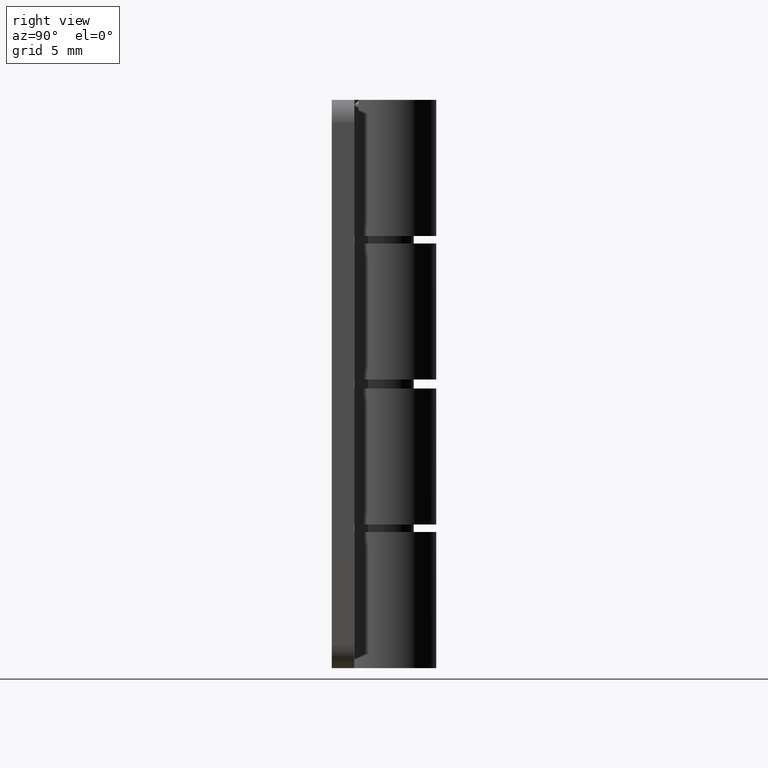
[diagram: clean part render]
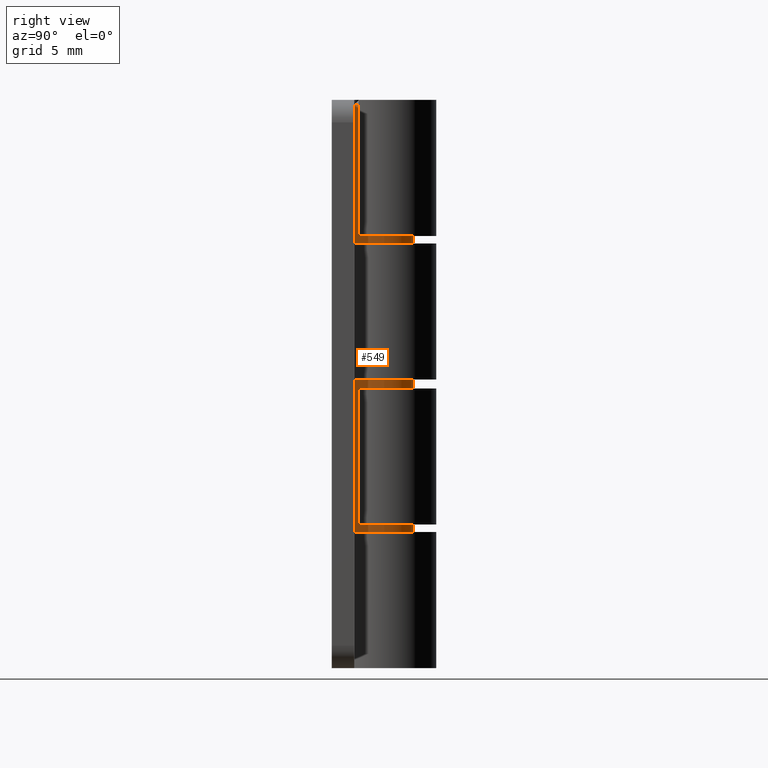
[diagram: same view with one face highlighted and labeled with its STEP entity id]
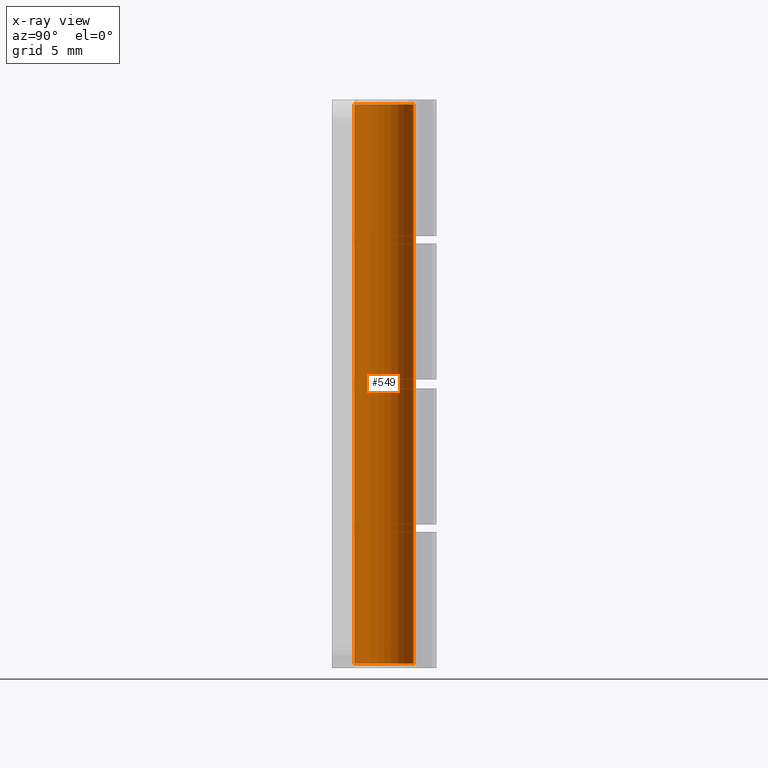
[diagram: x-ray of the same camera — body ghosted, the highlighted face saturated]
A machine part, right view. The second image highlights one B-rep face of the part: STEP entity #549.
The next image is the same camera in x-ray: the body ghosted, the highlighted face saturated — about 0% of this face is hidden behind the body in this view.
In plain terms, the highlighted cylindrical surface (bore or boss wall) has radius 2 mm, axis along (0, 0, 1).
Its self-contained STEP definition (entity closure, byte-faithful):
#50=FACE_BOUND('',#134,.T.);
#93=FACE_OUTER_BOUND('',#133,.T.);
#133=EDGE_LOOP('',(#503));
#134=EDGE_LOOP('',(#504));
#245=CIRCLE('',#610,2.);
#247=CIRCLE('',#613,2.);
#295=VERTEX_POINT('',#937);
#297=VERTEX_POINT('',#942);
#365=EDGE_CURVE('',#295,#295,#245,.T.);
#367=EDGE_CURVE('',#297,#297,#247,.T.);
#503=ORIENTED_EDGE('',*,*,#365,.F.);
#504=ORIENTED_EDGE('',*,*,#367,.F.);
#521=CYLINDRICAL_SURFACE('',#612,2.);
#549=ADVANCED_FACE('',(#93,#50),#521,.T.);
#610=AXIS2_PLACEMENT_3D('',#938,#772,#773);
#612=AXIS2_PLACEMENT_3D('',#941,#776,#777);
#613=AXIS2_PLACEMENT_3D('',#943,#778,#779);
#772=DIRECTION('center_axis',(0.,0.,-1.));
#773=DIRECTION('ref_axis',(-1.,0.,0.));
#776=DIRECTION('center_axis',(0.,0.,1.));
#777=DIRECTION('ref_axis',(1.,0.,0.));
#778=DIRECTION('center_axis',(0.,0.,1.));
#779=DIRECTION('ref_axis',(-1.,0.,0.));
#937=CARTESIAN_POINT('',(-2.,-2.44929359829471E-16,-18.7));
#938=CARTESIAN_POINT('Origin',(0.,0.,-18.7));
#941=CARTESIAN_POINT('Origin',(0.,0.,0.));
#942=CARTESIAN_POINT('',(2.,2.44929359829471E-16,18.7));
#943=CARTESIAN_POINT('Origin',(0.,0.,18.7));